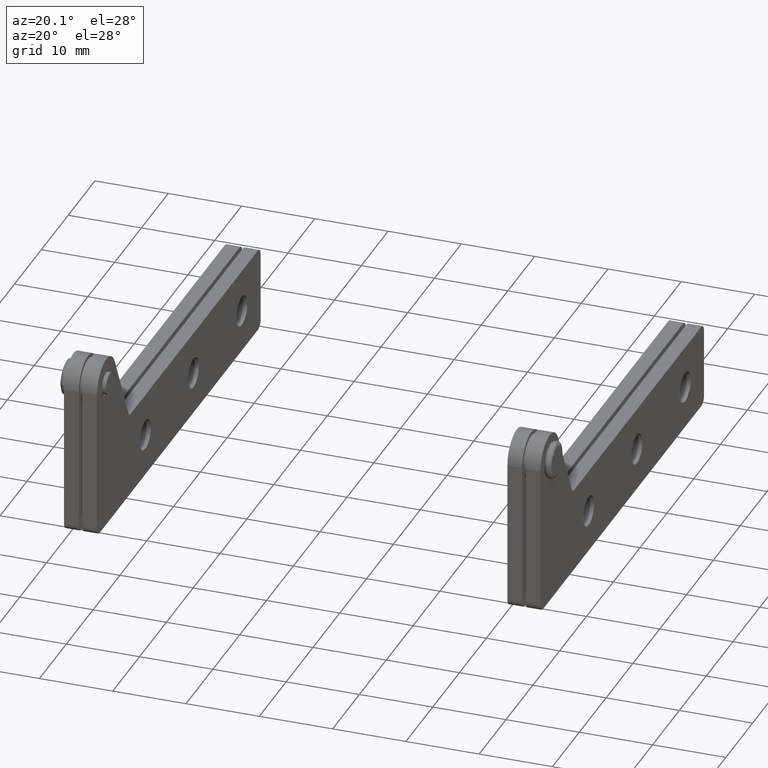
[diagram: clean part render]
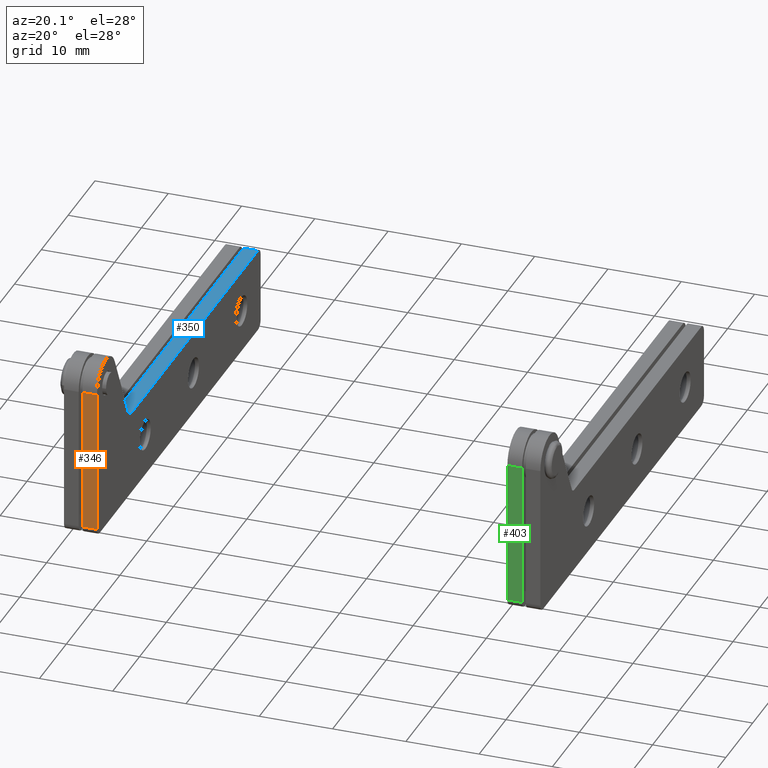
[diagram: same view with three faces highlighted in distinct colors, each labeled with its STEP entity id]
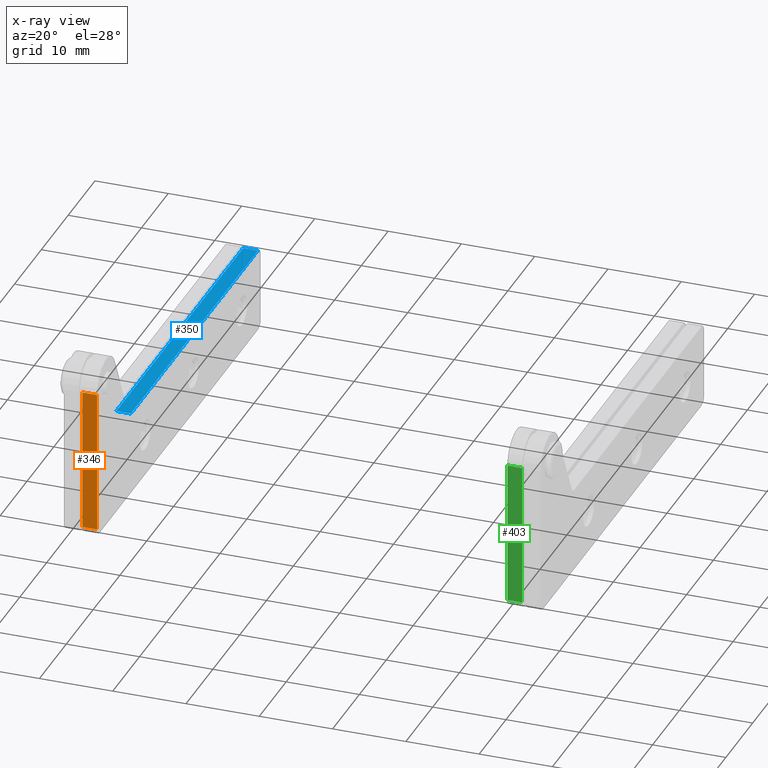
[diagram: x-ray of the same camera — body ghosted, the three highlighted faces saturated]
A machine part, auxiliary view with three faces highlighted in distinct colors.
The next image is the same camera in x-ray (body ghosted, the three faces saturated) — at least one of them is partly hidden behind the body in this view.
Their STEP definitions:

[orange] entity #346 — the highlighted planar face has unit normal (0, -1, 0).
#346=ADVANCED_FACE('',(#594),#593,.T.);
#593=PLANE('',#1956);
#594=FACE_OUTER_BOUND('',#1957,.T.);
#1953=CARTESIAN_POINT('',(3.50000000000E+000,-2.00000000000E-001,1.95000000000E+000));
#1954=DIRECTION('',(1.00000000000E+000,0.00000000000E+000,0.00000000000E+000));
#1955=DIRECTION('',(0.00000000000E+000,0.00000000000E+000,-1.00000000000E+000));
#1956=AXIS2_PLACEMENT_3D('',#1953,#1954,#1955);
#1957=EDGE_LOOP('',(#2871,#2872,#2873,#2874));
#2871=ORIENTED_EDGE('',*,*,#3466,.F.);
#2872=ORIENTED_EDGE('',*,*,#3482,.F.);
#2873=ORIENTED_EDGE('',*,*,#3455,.T.);
#2874=ORIENTED_EDGE('',*,*,#3483,.T.);
#3455=EDGE_CURVE('',#3916,#3909,#3917,.T.);
#3466=EDGE_CURVE('',#3985,#3992,#3993,.T.);
#3482=EDGE_CURVE('',#3916,#3985,#4103,.T.);
#3483=EDGE_CURVE('',#3909,#3992,#4109,.T.);
#3909=VERTEX_POINT('',#5951);
#3916=VERTEX_POINT('',#5956);
#3917=LINE('',#5957,#5958);
#3985=VERTEX_POINT('',#6004);
#3992=VERTEX_POINT('',#6009);
#3993=LINE('',#6010,#6011);
#4103=LINE('',#6084,#6085);
#4109=LINE('',#6087,#6088);
#5951=CARTESIAN_POINT('',(3.50000000000E+000,2.00000000000E+000,0.00000000000E+000));
#5956=CARTESIAN_POINT('',(3.50000000000E+000,2.00000000000E+000,-1.95000000000E+001));
#5957=CARTESIAN_POINT('',(3.50000000000E+000,2.00000000000E+000,-1.95000000000E+001));
#5958=VECTOR('',#5959,1.95000000000E+001);
#5959=DIRECTION('',(0.00000000000E+000,0.00000000000E+000,1.00000000000E+000));
#6004=CARTESIAN_POINT('',(3.50000000000E+000,0.00000000000E+000,-1.95000000000E+001));
#6009=CARTESIAN_POINT('',(3.50000000000E+000,0.00000000000E+000,0.00000000000E+000));
#6010=CARTESIAN_POINT('',(3.50000000000E+000,0.00000000000E+000,-1.95000000000E+001));
#6011=VECTOR('',#6012,1.95000000000E+001);
#6012=DIRECTION('',(0.00000000000E+000,0.00000000000E+000,1.00000000000E+000));
#6084=CARTESIAN_POINT('',(3.50000000000E+000,2.00000000000E+000,-1.95000000000E+001));
#6085=VECTOR('',#6086,2.00000000000E+000);
#6086=DIRECTION('',(0.00000000000E+000,-1.00000000000E+000,0.00000000000E+000));
#6087=CARTESIAN_POINT('',(3.50000000000E+000,2.00000000000E+000,0.00000000000E+000));
#6088=VECTOR('',#6089,2.00000000000E+000);
#6089=DIRECTION('',(0.00000000000E+000,-1.00000000000E+000,0.00000000000E+000));

[blue] entity #350 — the highlighted planar face has unit normal (0, 0, 1).
#350=ADVANCED_FACE('',(#634),#633,.T.);
#633=PLANE('',#1976);
#634=FACE_OUTER_BOUND('',#1977,.T.);
#1973=CARTESIAN_POINT('',(-6.12386483257E+001,-2.00000000000E-001,-9.00000000000E+000));
#1974=DIRECTION('',(0.00000000000E+000,-0.00000000000E+000,1.00000000000E+000));
#1975=DIRECTION('',(1.00000000000E+000,0.00000000000E+000,-0.00000000000E+000));
#1976=AXIS2_PLACEMENT_3D('',#1973,#1974,#1975);
#1977=EDGE_LOOP('',(#2887,#2888,#2889,#2890));
#2887=ORIENTED_EDGE('',*,*,#3470,.F.);
#2888=ORIENTED_EDGE('',*,*,#3486,.F.);
#2889=ORIENTED_EDGE('',*,*,#3451,.T.);
#2890=ORIENTED_EDGE('',*,*,#3487,.T.);
#3451=EDGE_CURVE('',#3888,#3881,#3889,.T.);
#3470=EDGE_CURVE('',#4013,#4020,#4021,.T.);
#3486=EDGE_CURVE('',#3888,#4013,#4127,.T.);
#3487=EDGE_CURVE('',#3881,#4020,#4133,.T.);
#3881=VERTEX_POINT('',#5933);
#3888=VERTEX_POINT('',#5938);
#3889=LINE('',#5939,#5940);
#4013=VERTEX_POINT('',#6022);
#4020=VERTEX_POINT('',#6027);
#4021=LINE('',#6028,#6029);
#4127=LINE('',#6096,#6097);
#4133=LINE('',#6099,#6100);
#5933=CARTESIAN_POINT('',(-5.65000000000E+001,2.00000000000E+000,-9.00000000000E+000));
#5938=CARTESIAN_POINT('',(-9.11351674310E+000,2.00000000000E+000,-9.00000000000E+000));
#5939=CARTESIAN_POINT('',(-9.11351674310E+000,2.00000000000E+000,-9.00000000000E+000));
#5940=VECTOR('',#5941,4.73864832569E+001);
#5941=DIRECTION('',(-1.00000000000E+000,0.00000000000E+000,0.00000000000E+000));
#6022=CARTESIAN_POINT('',(-9.11351674310E+000,0.00000000000E+000,-9.00000000000E+000));
#6027=CARTESIAN_POINT('',(-5.65000000000E+001,0.00000000000E+000,-9.00000000000E+000));
#6028=CARTESIAN_POINT('',(-9.11351674310E+000,0.00000000000E+000,-9.00000000000E+000));
#6029=VECTOR('',#6030,4.73864832569E+001);
#6030=DIRECTION('',(-1.00000000000E+000,0.00000000000E+000,0.00000000000E+000));
#6096=CARTESIAN_POINT('',(-9.11351674310E+000,2.00000000000E+000,-9.00000000000E+000));
#6097=VECTOR('',#6098,2.00000000000E+000);
#6098=DIRECTION('',(0.00000000000E+000,-1.00000000000E+000,0.00000000000E+000));
#6099=CARTESIAN_POINT('',(-5.65000000000E+001,2.00000000000E+000,-9.00000000000E+000));
#6100=VECTOR('',#6101,2.00000000000E+000);
#6101=DIRECTION('',(0.00000000000E+000,-1.00000000000E+000,0.00000000000E+000));

[green] entity #403 — the highlighted planar face has unit normal (0, -1, 0).
#403=ADVANCED_FACE('',(#1182),#1181,.T.);
#1181=PLANE('',#2331);
#1182=FACE_OUTER_BOUND('',#2332,.T.);
#2328=CARTESIAN_POINT('',(3.50000000000E+000,2.20000000000E+000,-4.29500000000E+001));
#2329=DIRECTION('',(1.00000000000E+000,0.00000000000E+000,-0.00000000000E+000));
#2330=DIRECTION('',(0.00000000000E+000,0.00000000000E+000,1.00000000000E+000));
#2331=AXIS2_PLACEMENT_3D('',#2328,#2329,#2330);
#2332=EDGE_LOOP('',(#3159,#3160,#3161,#3162));
#3159=ORIENTED_EDGE('',*,*,#3614,.T.);
#3160=ORIENTED_EDGE('',*,*,#3629,.F.);
#3161=ORIENTED_EDGE('',*,*,#3591,.F.);
#3162=ORIENTED_EDGE('',*,*,#3627,.T.);
#3591=EDGE_CURVE('',#4811,#4818,#4819,.T.);
#3614=EDGE_CURVE('',#4979,#4972,#4980,.T.);
#3627=EDGE_CURVE('',#4811,#4979,#5067,.T.);
#3629=EDGE_CURVE('',#4818,#4972,#5079,.T.);
#4811=VERTEX_POINT('',#6484);
#4818=VERTEX_POINT('',#6489);
#4819=LINE('',#6490,#6491);
#4972=VERTEX_POINT('',#6591);
#4979=VERTEX_POINT('',#6596);
#4980=LINE('',#6597,#6598);
#5067=LINE('',#6655,#6656);
#5079=LINE('',#6661,#6662);
#6484=CARTESIAN_POINT('',(3.50000000000E+000,2.00000000000E+000,-2.15000000000E+001));
#6489=CARTESIAN_POINT('',(3.50000000000E+000,2.00000000000E+000,-4.10000000000E+001));
#6490=CARTESIAN_POINT('',(3.50000000000E+000,2.00000000000E+000,-2.15000000000E+001));
#6491=VECTOR('',#6492,1.95000000000E+001);
#6492=DIRECTION('',(0.00000000000E+000,0.00000000000E+000,-1.00000000000E+000));
#6591=CARTESIAN_POINT('',(3.50000000000E+000,0.00000000000E+000,-4.10000000000E+001));
#6596=CARTESIAN_POINT('',(3.50000000000E+000,0.00000000000E+000,-2.15000000000E+001));
#6597=CARTESIAN_POINT('',(3.50000000000E+000,0.00000000000E+000,-2.15000000000E+001));
#6598=VECTOR('',#6599,1.95000000000E+001);
#6599=DIRECTION('',(0.00000000000E+000,0.00000000000E+000,-1.00000000000E+000));
#6655=CARTESIAN_POINT('',(3.50000000000E+000,2.00000000000E+000,-2.15000000000E+001));
#6656=VECTOR('',#6657,2.00000000000E+000);
#6657=DIRECTION('',(0.00000000000E+000,-1.00000000000E+000,0.00000000000E+000));
#6661=CARTESIAN_POINT('',(3.50000000000E+000,2.00000000000E+000,-4.10000000000E+001));
#6662=VECTOR('',#6663,2.00000000000E+000);
#6663=DIRECTION('',(0.00000000000E+000,-1.00000000000E+000,0.00000000000E+000));